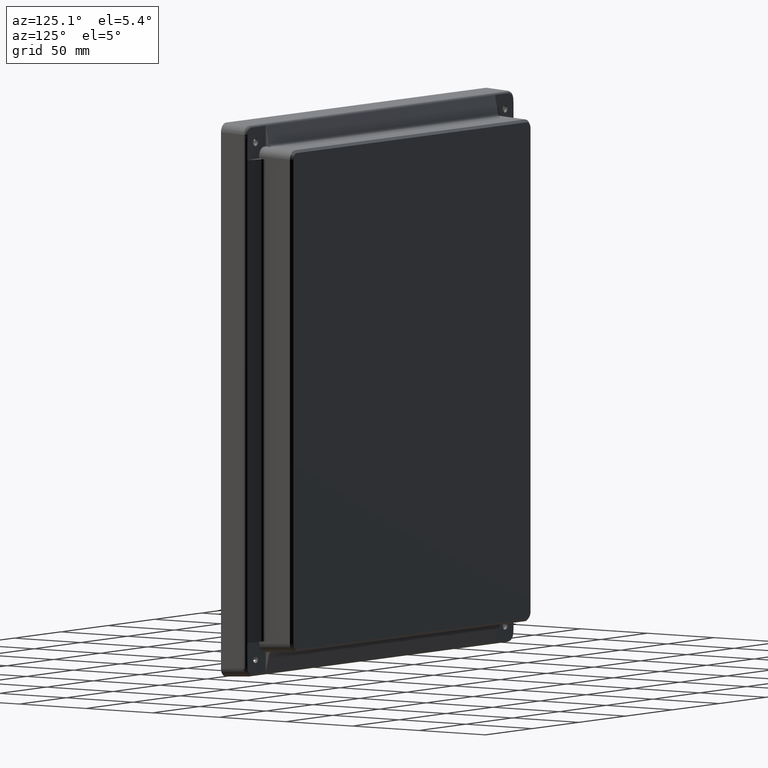
[diagram: clean part render]
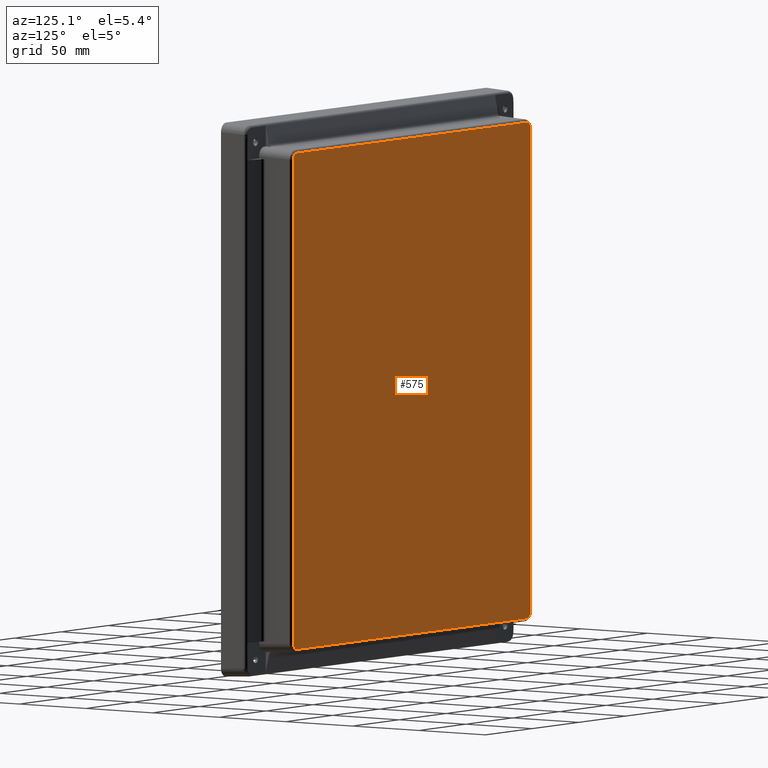
[diagram: same view with one face highlighted and labeled with its STEP entity id]
A machine part, auxiliary view. The second image highlights one B-rep face of the part: STEP entity #575.
In plain terms, the highlighted planar face has unit normal (0, 1, 0).
Its self-contained STEP definition (entity closure, byte-faithful):
#68 = DIRECTION ( 'NONE',  ( 1.000000000000000000, 0.0000000000000000000, 0.0000000000000000000 ) ) ;
#86 = LINE ( 'NONE', #5146, #4401 ) ;
#92 = CARTESIAN_POINT ( 'NONE',  ( 123.7903891230657100, 34.00000000000000000, 153.0124507910689700 ) ) ;
#160 = CARTESIAN_POINT ( 'NONE',  ( 126.5124507910689300, 33.99999999999999300, -150.2903891230653800 ) ) ;
#399 = EDGE_CURVE ( 'NONE', #2172, #4708, #1548, .T. ) ;
#403 = DIRECTION ( 'NONE',  ( 0.0000000000000000000, 1.000000000000000000, 0.0000000000000000000 ) ) ;
#423 = B_SPLINE_CURVE_WITH_KNOTS ( 'NONE', 3,
 ( #5842, #1074, #1634, #92, #5182, #1531, #5629, #5188, #5106, #2126, #5588, #1643 ),
 .UNSPECIFIED., .F., .F.,
 ( 4, 2, 2, 2, 2, 4 ),
 ( 0.0000000000000000000, 0.1250000000000000000, 0.2500000000000000000, 0.5000000000000000000, 0.7500000000000000000, 1.000000000000000000 ),
 .UNSPECIFIED. ) ;
#550 = VERTEX_POINT ( 'NONE', #756 ) ;
#575 = ADVANCED_FACE ( 'NONE', ( #4694 ), #1887, .T. ) ;
#756 = CARTESIAN_POINT ( 'NONE',  ( -126.6330037502763900, 34.00000000000000000, -149.3041769975908700 ) ) ;
#791 = CARTESIAN_POINT ( 'NONE',  ( -122.8041769975909000, 34.00000000000000000, -153.1330037502763200 ) ) ;
#827 = CARTESIAN_POINT ( 'NONE',  ( -126.1430421222688200, 33.99999999999999300, -151.2437896547827400 ) ) ;
#1074 = CARTESIAN_POINT ( 'NONE',  ( 123.0547802397764500, 34.00000000000000000, 153.1339722761486000 ) ) ;
#1078 = CARTESIAN_POINT ( 'NONE',  ( 126.6339722761486700, 34.00000000000000700, -149.5547802397762500 ) ) ;
#1164 = CARTESIAN_POINT ( 'NONE',  ( -122.8041769975908700, 34.00000000000000000, 153.1330037502763400 ) ) ;
#1236 = CARTESIAN_POINT ( 'NONE',  ( 126.6330037502763000, 34.00000000000000000, -149.3041769975908200 ) ) ;
#1279 = CARTESIAN_POINT ( 'NONE',  ( -123.0547802398046300, 34.00000000000000000, -153.1339722761486800 ) ) ;
#1321 = CARTESIAN_POINT ( 'NONE',  ( -126.6349423862212500, 34.00000000000000000, -149.8057933891850600 ) ) ;
#1357 = CARTESIAN_POINT ( 'NONE',  ( -126.5124507910690700, 34.00000000000000000, 150.2903891230780600 ) ) ;
#1372 = CARTESIAN_POINT ( 'NONE',  ( -126.6100553894816200, 34.00000000000000000, 149.8021433133208700 ) ) ;
#1386 = DIRECTION ( 'NONE',  ( -1.000000000000000000, 0.0000000000000000000, 0.0000000000000000000 ) ) ;
#1400 = EDGE_CURVE ( 'NONE', #4295, #3465, #4650, .T. ) ;
#1412 = CARTESIAN_POINT ( 'NONE',  ( -126.6330037502763600, 34.00000000000000000, 149.3041769975908700 ) ) ;
#1471 = CARTESIAN_POINT ( 'NONE',  ( -122.7256730632264800, 34.00000000000000000, -153.1330037502763200 ) ) ;
#1531 = CARTESIAN_POINT ( 'NONE',  ( 124.7418262364246100, 34.00000000000000700, 152.6440281518061400 ) ) ;
#1548 = LINE ( 'NONE', #5392, #6109 ) ;
#1615 = CARTESIAN_POINT ( 'NONE',  ( 126.1440281517896300, 34.00000000000001400, -151.2418262364641900 ) ) ;
#1634 = CARTESIAN_POINT ( 'NONE',  ( 123.3021433133085500, 34.00000000000000000, 153.1100553894815400 ) ) ;
#1643 = CARTESIAN_POINT ( 'NONE',  ( 126.6330037502765000, 34.00000000000000000, 149.3041769975908700 ) ) ;
#1774 = ORIENTED_EDGE ( 'NONE', *, *, #2443, .T. ) ;
#1801 = AXIS2_PLACEMENT_3D ( 'NONE', #5186, #403, #2370 ) ;
#1887 = PLANE ( 'NONE',  #1801 ) ;
#1908 = CARTESIAN_POINT ( 'NONE',  ( -125.1569440721213900, 34.00000000000000700, 152.3675752403606500 ) ) ;
#2034 = B_SPLINE_CURVE_WITH_KNOTS ( 'NONE', 3,
 ( #1412, #4780, #1372, #1357, #5306, #3813, #2844, #1908, #4738, #6284, #3351, #4756 ),
 .UNSPECIFIED., .F., .F.,
 ( 4, 2, 2, 2, 2, 4 ),
 ( 0.0000000000000000000, 0.1250000000000000000, 0.2500000000000000000, 0.5000000000000000000, 0.7500000000000000000, 1.000000000000000000 ),
 .UNSPECIFIED. ) ;
#2041 = CARTESIAN_POINT ( 'NONE',  ( 123.7940391989138900, 34.00000000000000000, -153.0373377878084400 ) ) ;
#2106 = CARTESIAN_POINT ( 'NONE',  ( 126.4382708566632400, 34.00000000000000000, -150.5324585220615200 ) ) ;
#2126 = CARTESIAN_POINT ( 'NONE',  ( 126.5373377878088800, 34.00000000000000700, 150.2940391989704700 ) ) ;
#2145 = CARTESIAN_POINT ( 'NONE',  ( 126.6330037502763000, 34.00000000000000000, -149.2256730632264200 ) ) ;
#2172 = VERTEX_POINT ( 'NONE', #1164 ) ;
#2244 = EDGE_CURVE ( 'NONE', #550, #4116, #86, .T. ) ;
#2264 = CARTESIAN_POINT ( 'NONE',  ( -123.3021433133508400, 33.99999999999999300, -153.1100553894817200 ) ) ;
#2274 = ORIENTED_EDGE ( 'NONE', *, *, #2244, .T. ) ;
#2370 = DIRECTION ( 'NONE',  ( 0.0000000000000000000, -0.0000000000000000000, 1.000000000000000000 ) ) ;
#2443 = EDGE_CURVE ( 'NONE', #3465, #5744, #3139, .T. ) ;
#2559 = CARTESIAN_POINT ( 'NONE',  ( 126.6100553894816700, 34.00000000000000000, -149.8021433133082200 ) ) ;
#2657 = ORIENTED_EDGE ( 'NONE', *, *, #4989, .T. ) ;
#2765 = B_SPLINE_CURVE_WITH_KNOTS ( 'NONE', 3,
 ( #791, #1279, #2264, #4647, #5720, #2795, #6212, #5661, #827, #6189, #1321, #5684 ),
 .UNSPECIFIED., .F., .F.,
 ( 4, 2, 2, 2, 2, 4 ),
 ( 0.0000000000000000000, 0.1249999999999995800, 0.2499999999999991700, 0.4999999999999994400, 0.7499999999999996700, 1.000000000000000000 ),
 .UNSPECIFIED. ) ;
#2795 = CARTESIAN_POINT ( 'NONE',  ( -124.7418262364848400, 34.00000000000000000, -152.6440281517574800 ) ) ;
#2844 = CARTESIAN_POINT ( 'NONE',  ( -125.8674593839925300, 34.00000000000000000, 151.6568282157532800 ) ) ;
#2931 = ORIENTED_EDGE ( 'NONE', *, *, #399, .T. ) ;
#2970 = CARTESIAN_POINT ( 'NONE',  ( 126.6330037502765000, 34.00000000000000000, 149.3041769975908700 ) ) ;
#3036 = ORIENTED_EDGE ( 'NONE', *, *, #4697, .T. ) ;
#3087 = DIRECTION ( 'NONE',  ( -2.660278812999576700E-016, 0.0000000000000000000, -1.000000000000000000 ) ) ;
#3139 = LINE ( 'NONE', #1471, #5099 ) ;
#3351 = CARTESIAN_POINT ( 'NONE',  ( -123.3057933891791300, 34.00000000000000000, 153.1349423862211600 ) ) ;
#3450 = ORIENTED_EDGE ( 'NONE', *, *, #1400, .T. ) ;
#3465 = VERTEX_POINT ( 'NONE', #5170 ) ;
#3621 = DIRECTION ( 'NONE',  ( 8.867596043331921800E-017, 0.0000000000000000000, 1.000000000000000000 ) ) ;
#3813 = CARTESIAN_POINT ( 'NONE',  ( -126.1440281517861300, 34.00000000000000700, 151.2418262364561500 ) ) ;
#3837 = ORIENTED_EDGE ( 'NONE', *, *, #6098, .T. ) ;
#3985 = CARTESIAN_POINT ( 'NONE',  ( 123.3057933891566300, 33.99999999999998600, -153.1349423862210400 ) ) ;
#4116 = VERTEX_POINT ( 'NONE', #4346 ) ;
#4162 = ORIENTED_EDGE ( 'NONE', *, *, #5948, .T. ) ;
#4295 = VERTEX_POINT ( 'NONE', #1236 ) ;
#4346 = CARTESIAN_POINT ( 'NONE',  ( -126.6330037502763600, 34.00000000000000000, 149.3041769975908700 ) ) ;
#4401 = VECTOR ( 'NONE', #3621, 1000.000000000000000 ) ;
#4452 = CARTESIAN_POINT ( 'NONE',  ( 125.8674593840283500, 33.99999999999999300, -151.6568282157289200 ) ) ;
#4472 = CARTESIAN_POINT ( 'NONE',  ( 125.1569440720855500, 34.00000000000000000, -152.3675752403849200 ) ) ;
#4647 = CARTESIAN_POINT ( 'NONE',  ( -123.7903891231080600, 34.00000000000000700, -153.0124507910692000 ) ) ;
#4650 = B_SPLINE_CURVE_WITH_KNOTS ( 'NONE', 3,
 ( #5981, #1078, #2559, #160, #2106, #1615, #4452, #4472, #4968, #2041, #3985, #5955 ),
 .UNSPECIFIED., .F., .F.,
 ( 4, 2, 2, 2, 2, 4 ),
 ( 0.0000000000000000000, 0.1250000000000027500, 0.2500000000000055000, 0.5000000000000036600, 0.7500000000000017800, 1.000000000000000000 ),
 .UNSPECIFIED. ) ;
#4694 = FACE_OUTER_BOUND ( 'NONE', #5460, .T. ) ;
#4697 = EDGE_CURVE ( 'NONE', #4708, #5022, #423, .T. ) ;
#4708 = VERTEX_POINT ( 'NONE', #6042 ) ;
#4738 = CARTESIAN_POINT ( 'NONE',  ( -124.7437896547887100, 34.00000000000000000, 152.6430421222687800 ) ) ;
#4756 = CARTESIAN_POINT ( 'NONE',  ( -122.8041769975908700, 34.00000000000000000, 153.1330037502763400 ) ) ;
#4780 = CARTESIAN_POINT ( 'NONE',  ( -126.6339722761486100, 34.00000000000000000, 149.5547802397846300 ) ) ;
#4968 = CARTESIAN_POINT ( 'NONE',  ( 124.7437896548111500, 34.00000000000000700, -152.6430421222688900 ) ) ;
#4989 = EDGE_CURVE ( 'NONE', #4116, #2172, #2034, .T. ) ;
#5022 = VERTEX_POINT ( 'NONE', #2970 ) ;
#5099 = VECTOR ( 'NONE', #1386, 1000.000000000000000 ) ;
#5106 = CARTESIAN_POINT ( 'NONE',  ( 126.1430421222687100, 34.00000000000000000, 151.2437896547545800 ) ) ;
#5146 = CARTESIAN_POINT ( 'NONE',  ( -126.6330037502763600, 34.00000000000000000, 149.2256730632264000 ) ) ;
#5170 = CARTESIAN_POINT ( 'NONE',  ( 122.8041769975908600, 34.00000000000000000, -153.1330037502763400 ) ) ;
#5182 = CARTESIAN_POINT ( 'NONE',  ( 124.0324585220816300, 34.00000000000000000, 152.9382708566550100 ) ) ;
#5186 = CARTESIAN_POINT ( 'NONE',  ( -130.0000000000000300, 34.00000000000000000, 156.5000000000000000 ) ) ;
#5188 = CARTESIAN_POINT ( 'NONE',  ( 125.8675752403281200, 34.00000000000000700, 151.6569440721656600 ) ) ;
#5191 = LINE ( 'NONE', #2145, #5420 ) ;
#5306 = CARTESIAN_POINT ( 'NONE',  ( -126.4382708566650400, 34.00000000000000000, 150.5324585220657000 ) ) ;
#5392 = CARTESIAN_POINT ( 'NONE',  ( 122.7256730632265100, 34.00000000000000000, 153.1330037502763400 ) ) ;
#5405 = CARTESIAN_POINT ( 'NONE',  ( -122.8041769975909000, 34.00000000000000000, -153.1330037502763200 ) ) ;
#5420 = VECTOR ( 'NONE', #3087, 1000.000000000000000 ) ;
#5460 = EDGE_LOOP ( 'NONE', ( #1774, #4162, #2274, #2657, #2931, #3036, #3837, #3450 ) ) ;
#5588 = CARTESIAN_POINT ( 'NONE',  ( 126.6349423862215000, 34.00000000000000000, 149.8057933892132800 ) ) ;
#5629 = CARTESIAN_POINT ( 'NONE',  ( 125.1568282157860800, 34.00000000000000000, 152.3674593839482700 ) ) ;
#5661 = CARTESIAN_POINT ( 'NONE',  ( -125.8675752403565400, 34.00000000000000000, -151.6569440721255000 ) ) ;
#5684 = CARTESIAN_POINT ( 'NONE',  ( -126.6330037502763900, 34.00000000000000000, -149.3041769975908700 ) ) ;
#5720 = CARTESIAN_POINT ( 'NONE',  ( -124.0324585220514100, 34.00000000000000000, -152.9382708566792800 ) ) ;
#5744 = VERTEX_POINT ( 'NONE', #5405 ) ;
#5842 = CARTESIAN_POINT ( 'NONE',  ( 122.8041769975909700, 34.00000000000000000, 153.1330037502763400 ) ) ;
#5948 = EDGE_CURVE ( 'NONE', #5744, #550, #2765, .T. ) ;
#5955 = CARTESIAN_POINT ( 'NONE',  ( 122.8041769975908600, 34.00000000000000000, -153.1330037502763400 ) ) ;
#5981 = CARTESIAN_POINT ( 'NONE',  ( 126.6330037502763000, 34.00000000000000000, -149.3041769975908200 ) ) ;
#6042 = CARTESIAN_POINT ( 'NONE',  ( 122.8041769975909700, 34.00000000000000000, 153.1330037502763400 ) ) ;
#6098 = EDGE_CURVE ( 'NONE', #5022, #4295, #5191, .T. ) ;
#6109 = VECTOR ( 'NONE', #68, 1000.000000000000000 ) ;
#6189 = CARTESIAN_POINT ( 'NONE',  ( -126.5373377878086800, 34.00000000000000700, -150.2940391989423000 ) ) ;
#6212 = CARTESIAN_POINT ( 'NONE',  ( -125.1568282157574100, 34.00000000000000000, -152.3674593839884000 ) ) ;
#6284 = CARTESIAN_POINT ( 'NONE',  ( -123.7940391989363500, 34.00000000000000700, 153.0373377878086700 ) ) ;